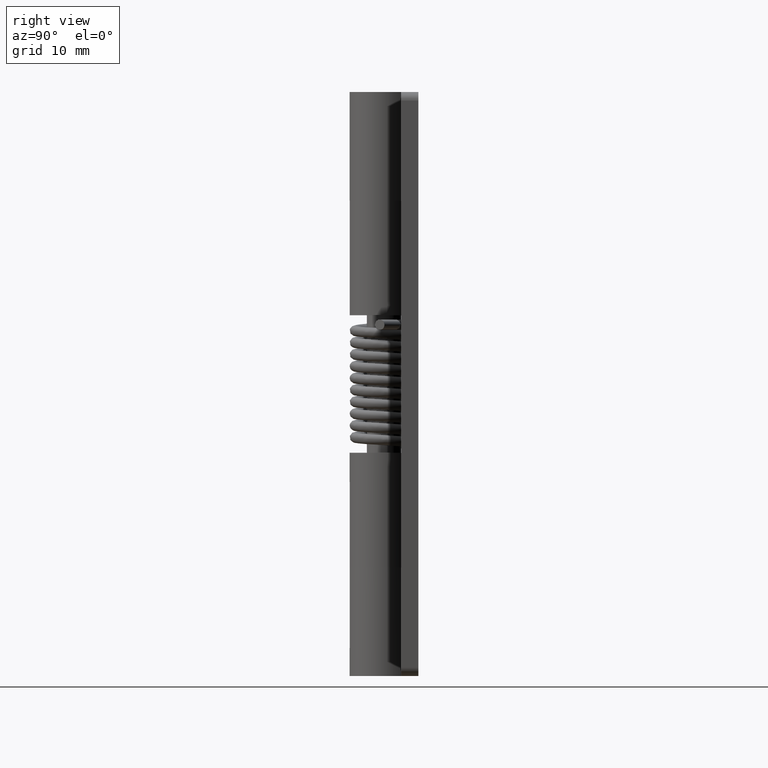
[diagram: clean part render]
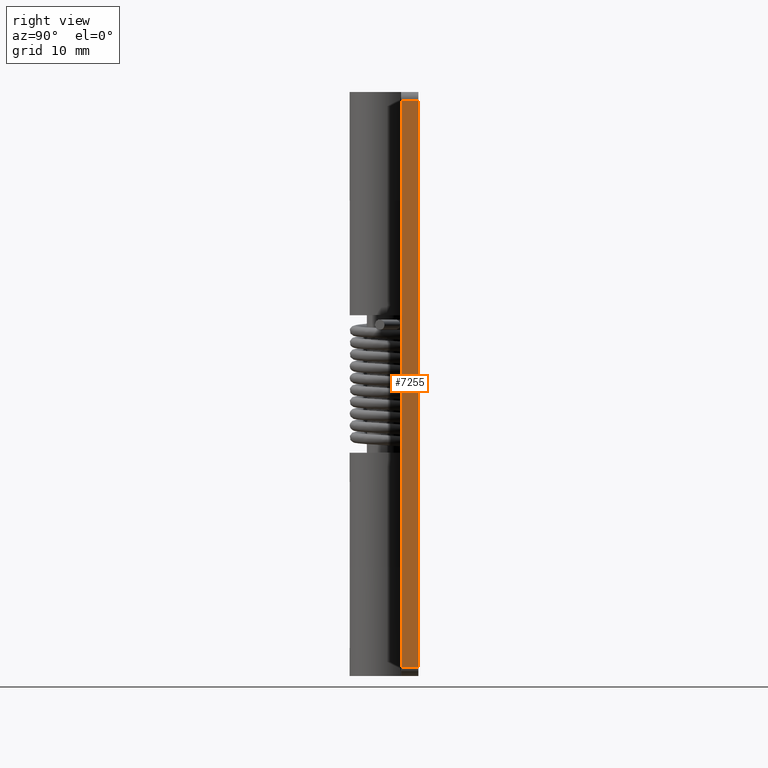
[diagram: same view with one face highlighted and labeled with its STEP entity id]
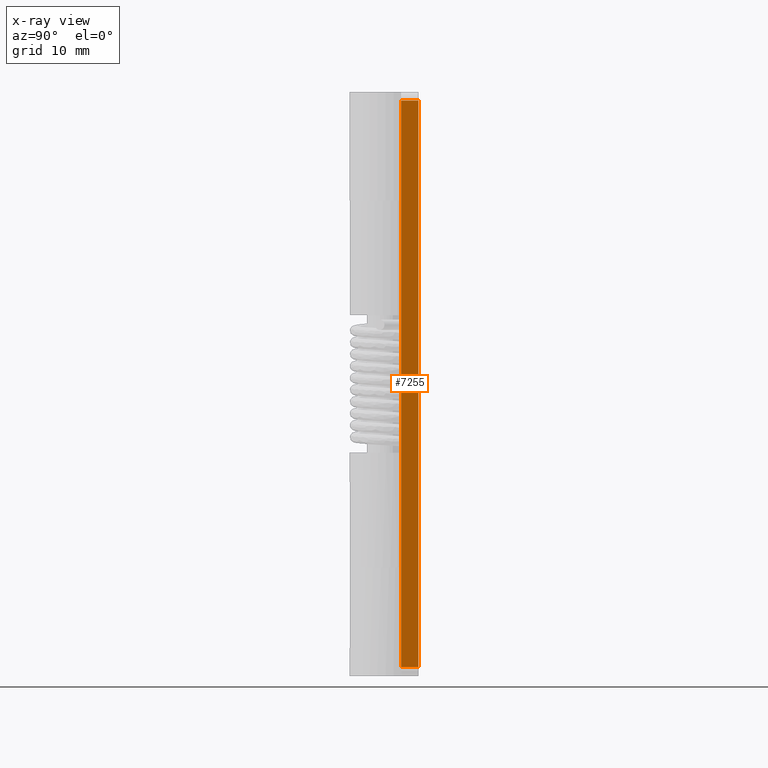
[diagram: x-ray of the same camera — body ghosted, the highlighted face saturated]
A machine part, right view. The second image highlights one B-rep face of the part: STEP entity #7255.
The next image is the same camera in x-ray: the body ghosted, the highlighted face saturated — about 0% of this face is hidden behind the body in this view.
In plain terms, the highlighted face is a freeform B-spline surface patch.
Its self-contained STEP definition (entity closure, byte-faithful):
#6988=CARTESIAN_POINT('',(19.0,1.500000000000055,50.250000000000000));
#6989=VERTEX_POINT('',#6988);
#7005=CARTESIAN_POINT('',(19.0,3.0,50.250000000000000));
#7006=VERTEX_POINT('',#7005);
#7007=CARTESIAN_POINT('',(19.0,3.0,50.250000000000000));
#7008=CARTESIAN_POINT('',(19.0,1.500000000000055,50.250000000000000));
#7009=QUASI_UNIFORM_CURVE('',1,(#7007,#7008),.UNSPECIFIED.,.F.,.U.);
#7010=EDGE_CURVE('',#7006,#6989,#7009,.T.);
#7051=CARTESIAN_POINT('',(19.0,1.500000000000055,0.750000000000000));
#7052=VERTEX_POINT('',#7051);
#7073=CARTESIAN_POINT('',(19.0,3.0,0.750000000000000));
#7074=VERTEX_POINT('',#7073);
#7088=CARTESIAN_POINT('',(19.0,3.0,0.750000000000000));
#7089=CARTESIAN_POINT('',(19.0,1.500000000000055,0.750000000000000));
#7090=QUASI_UNIFORM_CURVE('',1,(#7088,#7089),.UNSPECIFIED.,.F.,.U.);
#7091=EDGE_CURVE('',#7074,#7052,#7090,.T.);
#7236=CARTESIAN_POINT('',(19.0,1.425075002907349,-1.722524904059399));
#7237=CARTESIAN_POINT('',(19.0,1.425075002907349,52.722526231752859));
#7238=CARTESIAN_POINT('',(19.0,3.074925037325842,-1.722524904059399));
#7239=CARTESIAN_POINT('',(19.0,3.074925037325842,52.722526231752859));
#7240=B_SPLINE_SURFACE_WITH_KNOTS('',1,1,((#7236,#7238),(#7237,#7239)),.UNSPECIFIED.,.F.,.F.,.U.,(2,2),(2,2),(0.0,54.445051135812257),(0.041708334948495,0.958291687403247),.UNSPECIFIED.);
#7241=CARTESIAN_POINT('',(19.0,3.0,0.750000000000000));
#7242=CARTESIAN_POINT('',(19.0,3.0,50.250000000000000));
#7243=QUASI_UNIFORM_CURVE('',1,(#7241,#7242),.UNSPECIFIED.,.F.,.U.);
#7244=EDGE_CURVE('',#7074,#7006,#7243,.T.);
#7245=ORIENTED_EDGE('',*,*,#7244,.T.);
#7246=ORIENTED_EDGE('',*,*,#7010,.T.);
#7247=CARTESIAN_POINT('',(19.0,1.500000000000055,0.750000000000000));
#7248=CARTESIAN_POINT('',(19.0,1.500000000000055,50.250000000000000));
#7249=QUASI_UNIFORM_CURVE('',1,(#7247,#7248),.UNSPECIFIED.,.F.,.U.);
#7250=EDGE_CURVE('',#7052,#6989,#7249,.T.);
#7251=ORIENTED_EDGE('',*,*,#7250,.F.);
#7252=ORIENTED_EDGE('',*,*,#7091,.F.);
#7253=EDGE_LOOP('',(#7245,#7246,#7251,#7252));
#7254=FACE_OUTER_BOUND('',#7253,.T.);
#7255=ADVANCED_FACE('',(#7254),#7240,.F.);